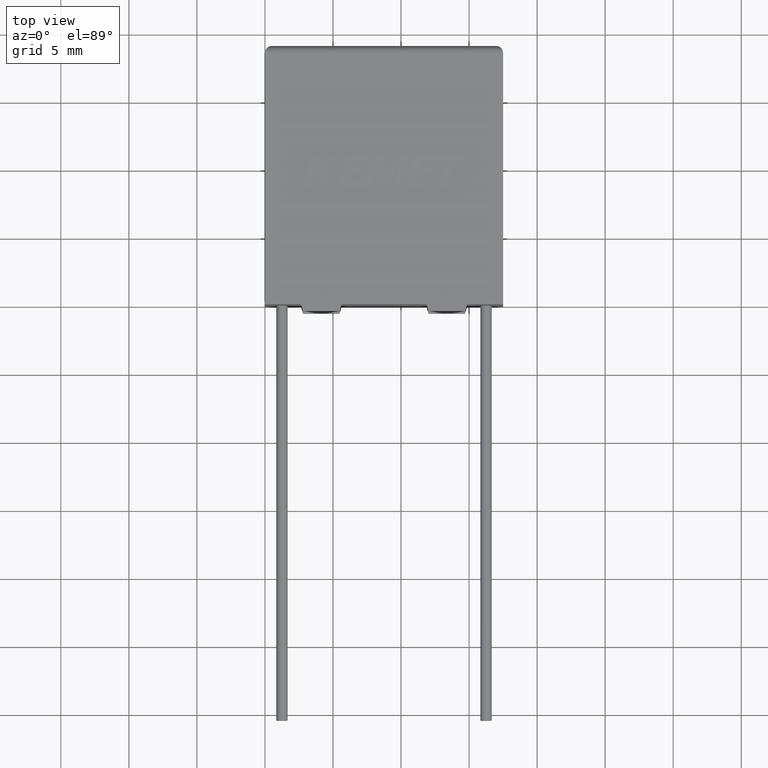
[diagram: clean part render]
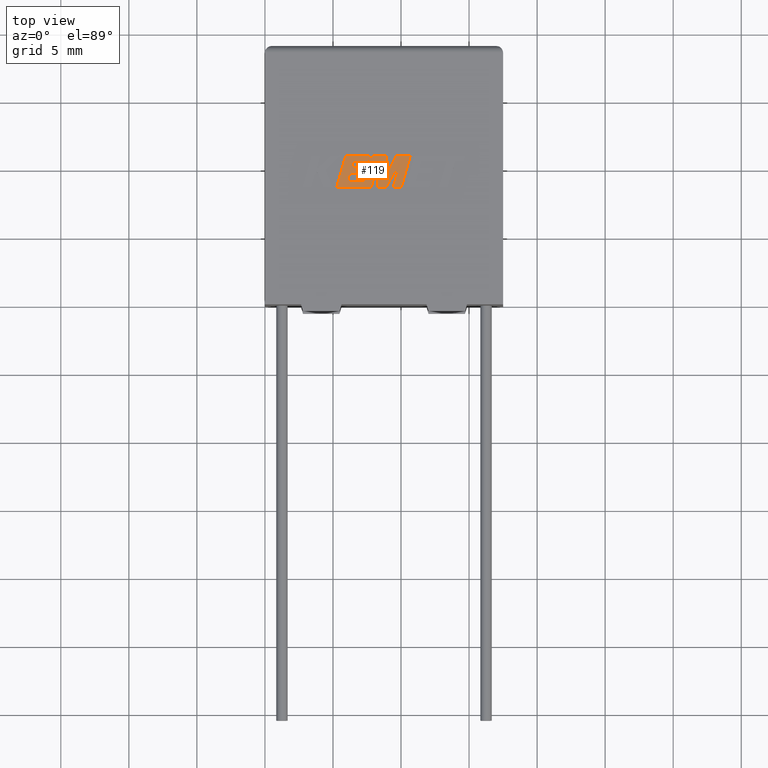
[diagram: same view with one face highlighted and labeled with its STEP entity id]
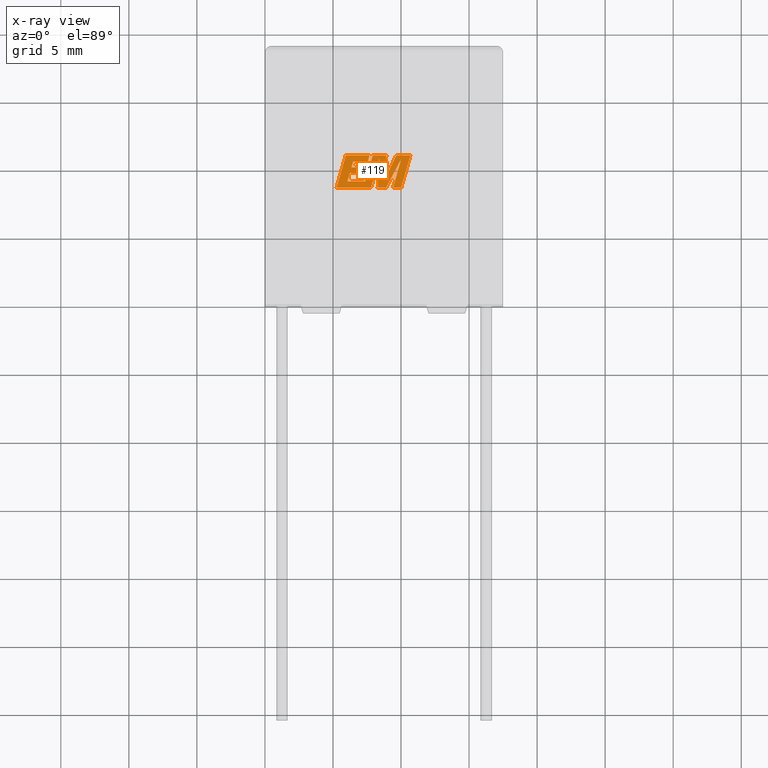
[diagram: x-ray of the same camera — body ghosted, the highlighted face saturated]
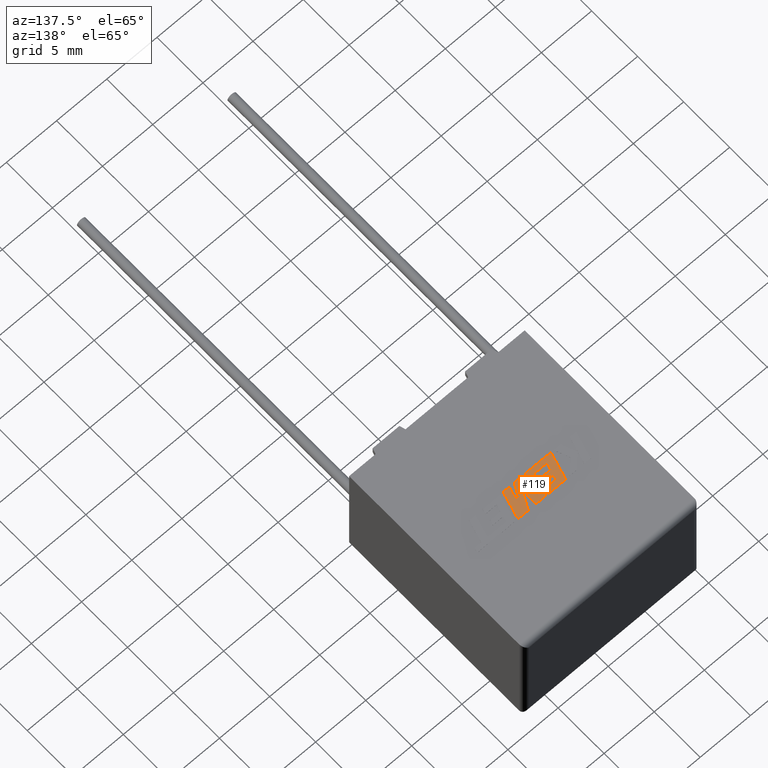
[diagram: same view with one face highlighted and labeled with its STEP entity id]
A machine part, top view. The second image highlights one B-rep face of the part: STEP entity #119.
The next image is the same camera in x-ray: the body ghosted, the highlighted face saturated — about 0% of this face is hidden behind the body in this view.
A second angle (auxiliary view) of the same face is appended — the face is thin or edge-on in the first view.
In plain terms, the highlighted planar face has unit normal (0, 0, -1).
Its self-contained STEP definition (entity closure, byte-faithful):
#35 = CARTESIAN_POINT ( 'NONE',  ( 10.02312357218991500, 10.69786491298199300, 11.50499999999999900 ) ) ;
#48 = LINE ( 'NONE', #1229, #1693 ) ;
#60 = LINE ( 'NONE', #2181, #442 ) ;
#88 = VERTEX_POINT ( 'NONE', #2430 ) ;
#93 = VERTEX_POINT ( 'NONE', #1691 ) ;
#119 = ADVANCED_FACE ( 'NONE', ( #3219 ), #885, .F. ) ;
#133 = ORIENTED_EDGE ( 'NONE', *, *, #2324, .T. ) ;
#151 = DIRECTION ( 'NONE',  ( 0.2740217765954066100, 0.9617234872620595800, 0.0000000000000000000 ) ) ;
#162 = CARTESIAN_POINT ( 'NONE',  ( 7.554755503892309300, 10.49815144438163000, 11.50499999999999900 ) ) ;
#165 = CARTESIAN_POINT ( 'NONE',  ( 7.681918713741795900, 10.94587608440335600, 11.50499999999999900 ) ) ;
#182 = CARTESIAN_POINT ( 'NONE',  ( 0.07943521965645371200, -4.458355050973589000, 11.50499999999999500 ) ) ;
#217 = ORIENTED_EDGE ( 'NONE', *, *, #1422, .T. ) ;
#226 = DIRECTION ( 'NONE',  ( 1.000000000000000000, 0.0000000000000000000, 0.0000000000000000000 ) ) ;
#233 = CARTESIAN_POINT ( 'NONE',  ( 10.01660091485718100, 8.593699999999927300, 11.50499999999999900 ) ) ;
#302 = ORIENTED_EDGE ( 'NONE', *, *, #1940, .T. ) ;
#305 = VERTEX_POINT ( 'NONE', #1101 ) ;
#307 = VECTOR ( 'NONE', #1320, 1000.000000000000000 ) ;
#311 = CARTESIAN_POINT ( 'NONE',  ( 10.02312357218991500, 10.69786491298199300, 11.50499999999999900 ) ) ;
#327 = DIRECTION ( 'NONE',  ( 0.2759782365590801000, 0.9611638845408936300, 0.0000000000000000000 ) ) ;
#342 = LINE ( 'NONE', #233, #1604 ) ;
#343 = LINE ( 'NONE', #2569, #838 ) ;
#354 = CARTESIAN_POINT ( 'NONE',  ( 8.827784731893460800, 9.265451267950634700, 11.50499999999999900 ) ) ;
#369 = ORIENTED_EDGE ( 'NONE', *, *, #1919, .T. ) ;
#407 = ORIENTED_EDGE ( 'NONE', *, *, #1539, .T. ) ;
#413 = CARTESIAN_POINT ( 'NONE',  ( 9.661220449992331500, 10.94587608440335600, 11.50499999999999900 ) ) ;
#438 = VECTOR ( 'NONE', #940, 1000.000000000000000 ) ;
#442 = VECTOR ( 'NONE', #1927, 1000.000000000000200 ) ;
#446 = VECTOR ( 'NONE', #1950, 1000.000000000000000 ) ;
#453 = DIRECTION ( 'NONE',  ( 0.2732148821745925000, 0.9619530280415585800, 0.0000000000000000000 ) ) ;
#459 = EDGE_CURVE ( 'NONE', #1345, #612, #2245, .T. ) ;
#462 = CARTESIAN_POINT ( 'NONE',  ( 6.065143635469668800, 9.041202926892678300, 11.50499999999999900 ) ) ;
#498 = LINE ( 'NONE', #1019, #2895 ) ;
#504 = EDGE_CURVE ( 'NONE', #2608, #2747, #342, .T. ) ;
#573 = ORIENTED_EDGE ( 'NONE', *, *, #2016, .T. ) ;
#594 = ORIENTED_EDGE ( 'NONE', *, *, #1618, .T. ) ;
#595 = CARTESIAN_POINT ( 'NONE',  ( 5.944209849470560400, 10.94587608440335600, 11.50499999999999900 ) ) ;
#612 = VERTEX_POINT ( 'NONE', #462 ) ;
#650 = ORIENTED_EDGE ( 'NONE', *, *, #791, .T. ) ;
#654 = CARTESIAN_POINT ( 'NONE',  ( 10.69286888281140300, 10.94587608440335600, 11.50499999999999900 ) ) ;
#658 = VECTOR ( 'NONE', #151, 1000.000000000000100 ) ;
#790 = CARTESIAN_POINT ( 'NONE',  ( 8.912326471646855100, 8.593699999999927300, 11.50499999999999900 ) ) ;
#791 = EDGE_CURVE ( 'NONE', #1904, #2566, #1078, .T. ) ;
#793 = ORIENTED_EDGE ( 'NONE', *, *, #2169, .T. ) ;
#805 = EDGE_CURVE ( 'NONE', #2494, #1432, #3094, .T. ) ;
#817 = CARTESIAN_POINT ( 'NONE',  ( 7.801364874262980600, 8.593699999999927300, 11.50499999999999900 ) ) ;
#818 = CARTESIAN_POINT ( 'NONE',  ( 7.241153005273329100, 9.625810394430523300, 11.50499999999999900 ) ) ;
#825 = LINE ( 'NONE', #354, #1066 ) ;
#829 = VERTEX_POINT ( 'NONE', #818 ) ;
#834 = VECTOR ( 'NONE', #1792, 1000.000000000000200 ) ;
#838 = VECTOR ( 'NONE', #327, 1000.000000000000100 ) ;
#842 = DIRECTION ( 'NONE',  ( 1.000000000000000000, 0.0000000000000000000, 0.0000000000000000000 ) ) ;
#867 = EDGE_CURVE ( 'NONE', #3045, #1037, #343, .T. ) ;
#879 = CARTESIAN_POINT ( 'NONE',  ( 6.231714566706590300, 9.625810394430523300, 11.50499999999999900 ) ) ;
#885 = PLANE ( 'NONE',  #2885 ) ;
#919 = CARTESIAN_POINT ( 'NONE',  ( 6.483080043273763400, 10.49815144438163000, 11.50499999999999900 ) ) ;
#940 = DIRECTION ( 'NONE',  ( 0.2793947940878287500, 0.9601763114327596100, 0.0000000000000000000 ) ) ;
#951 = VERTEX_POINT ( 'NONE', #2888 ) ;
#1019 = CARTESIAN_POINT ( 'NONE',  ( 8.918242698049985200, 10.94587608440335600, 11.50499999999999900 ) ) ;
#1037 = VERTEX_POINT ( 'NONE', #1357 ) ;
#1052 = ORIENTED_EDGE ( 'NONE', *, *, #3131, .T. ) ;
#1062 = VERTEX_POINT ( 'NONE', #1421 ) ;
#1066 = VECTOR ( 'NONE', #2146, 1000.000000000000100 ) ;
#1071 = LINE ( 'NONE', #2122, #307 ) ;
#1073 = DIRECTION ( 'NONE',  ( -1.000000000000000000, 0.0000000000000000000, 0.0000000000000000000 ) ) ;
#1075 = EDGE_CURVE ( 'NONE', #305, #2608, #2059, .T. ) ;
#1078 = LINE ( 'NONE', #2588, #1776 ) ;
#1101 = CARTESIAN_POINT ( 'NONE',  ( 9.418876612286860400, 8.593699999999927300, 11.50499999999999900 ) ) ;
#1113 = CARTESIAN_POINT ( 'NONE',  ( 6.231714566706590300, 9.625810394430523300, 11.50499999999999900 ) ) ;
#1135 = DIRECTION ( 'NONE',  ( 0.0000000000000000000, 0.0000000000000000000, -1.000000000000000000 ) ) ;
#1229 = CARTESIAN_POINT ( 'NONE',  ( 6.483080043273763400, 10.49815144438163000, 11.50499999999999900 ) ) ;
#1237 = ORIENTED_EDGE ( 'NONE', *, *, #867, .T. ) ;
#1247 = ORIENTED_EDGE ( 'NONE', *, *, #1327, .T. ) ;
#1282 = CARTESIAN_POINT ( 'NONE',  ( 7.369060026916844000, 9.041202926892678300, 11.50499999999999900 ) ) ;
#1285 = DIRECTION ( 'NONE',  ( -1.000000000000000000, 0.0000000000000000000, 0.0000000000000000000 ) ) ;
#1314 = CARTESIAN_POINT ( 'NONE',  ( 8.912326471646855100, 8.593699999999927300, 11.50499999999999900 ) ) ;
#1320 = DIRECTION ( 'NONE',  ( -0.2762517575166160700, -0.9610853065513907900, 0.0000000000000000000 ) ) ;
#1327 = EDGE_CURVE ( 'NONE', #1432, #305, #2657, .T. ) ;
#1331 = EDGE_CURVE ( 'NONE', #88, #93, #498, .T. ) ;
#1345 = VERTEX_POINT ( 'NONE', #3060 ) ;
#1357 = CARTESIAN_POINT ( 'NONE',  ( 8.402636586962369600, 10.68778054145226400, 11.50499999999999900 ) ) ;
#1421 = CARTESIAN_POINT ( 'NONE',  ( 8.285257363114753900, 8.593699999999927300, 11.50499999999999900 ) ) ;
#1422 = EDGE_CURVE ( 'NONE', #93, #1345, #1071, .T. ) ;
#1432 = VERTEX_POINT ( 'NONE', #311 ) ;
#1463 = ORIENTED_EDGE ( 'NONE', *, *, #805, .T. ) ;
#1467 = LINE ( 'NONE', #1749, #2736 ) ;
#1478 = VERTEX_POINT ( 'NONE', #879 ) ;
#1480 = CARTESIAN_POINT ( 'NONE',  ( 7.365355271991178100, 10.06064706458987200, 11.50499999999999900 ) ) ;
#1501 = CARTESIAN_POINT ( 'NONE',  ( 10.69286888281140300, 10.94587608440335600, 11.50499999999999900 ) ) ;
#1539 = EDGE_CURVE ( 'NONE', #1062, #2494, #1588, .T. ) ;
#1574 = DIRECTION ( 'NONE',  ( -0.2765379750249959400, -0.9610029908221278100, 0.0000000000000000000 ) ) ;
#1588 = LINE ( 'NONE', #1674, #446 ) ;
#1595 = VERTEX_POINT ( 'NONE', #2664 ) ;
#1604 = VECTOR ( 'NONE', #3198, 1000.000000000000100 ) ;
#1618 = EDGE_CURVE ( 'NONE', #951, #3240, #1865, .T. ) ;
#1639 = VECTOR ( 'NONE', #2928, 1000.000000000000000 ) ;
#1674 = CARTESIAN_POINT ( 'NONE',  ( 8.285257363114753900, 8.593699999999927300, 11.50499999999999900 ) ) ;
#1675 = ORIENTED_EDGE ( 'NONE', *, *, #1331, .T. ) ;
#1691 = CARTESIAN_POINT ( 'NONE',  ( 7.916534120704699100, 10.94587608440335600, 11.50499999999999900 ) ) ;
#1693 = VECTOR ( 'NONE', #1755, 1000.000000000000000 ) ;
#1708 = DIRECTION ( 'NONE',  ( -0.4443210308329059200, -0.8958676361827030400, 0.0000000000000000000 ) ) ;
#1710 = VECTOR ( 'NONE', #1952, 1000.000000000000100 ) ;
#1732 = CARTESIAN_POINT ( 'NONE',  ( 7.554755503892309300, 10.49815144438163000, 11.50499999999999900 ) ) ;
#1749 = CARTESIAN_POINT ( 'NONE',  ( 5.267348260593836400, 8.593699999999927300, 11.50499999999999900 ) ) ;
#1755 = DIRECTION ( 'NONE',  ( 1.000000000000000000, 0.0000000000000000000, 0.0000000000000000000 ) ) ;
#1760 = DIRECTION ( 'NONE',  ( -1.000000000000000000, 0.0000000000000000000, 0.0000000000000000000 ) ) ;
#1776 = VECTOR ( 'NONE', #1073, 1000.000000000000000 ) ;
#1782 = ORIENTED_EDGE ( 'NONE', *, *, #2532, .T. ) ;
#1792 = DIRECTION ( 'NONE',  ( -0.2760118818968562100, -0.9611542233438689100, 0.0000000000000000000 ) ) ;
#1802 = ORIENTED_EDGE ( 'NONE', *, *, #2109, .T. ) ;
#1813 = LINE ( 'NONE', #3196, #3099 ) ;
#1825 = VECTOR ( 'NONE', #1574, 1000.000000000000000 ) ;
#1837 = EDGE_CURVE ( 'NONE', #2089, #88, #825, .T. ) ;
#1842 = CARTESIAN_POINT ( 'NONE',  ( 5.944209849470560400, 10.94587608440335600, 11.50499999999999900 ) ) ;
#1860 = LINE ( 'NONE', #2947, #438 ) ;
#1865 = LINE ( 'NONE', #1480, #2043 ) ;
#1904 = VERTEX_POINT ( 'NONE', #165 ) ;
#1919 = EDGE_CURVE ( 'NONE', #829, #951, #2340, .T. ) ;
#1927 = DIRECTION ( 'NONE',  ( -0.05596501978068205200, -0.9984327301130245800, 0.0000000000000000000 ) ) ;
#1940 = EDGE_CURVE ( 'NONE', #1037, #1062, #60, .T. ) ;
#1943 = LINE ( 'NONE', #1842, #1825 ) ;
#1950 = DIRECTION ( 'NONE',  ( 1.000000000000000000, 0.0000000000000000000, 0.0000000000000000000 ) ) ;
#1952 = DIRECTION ( 'NONE',  ( 0.2746459304916904500, 0.9615454294334477800, 0.0000000000000000000 ) ) ;
#1977 = CARTESIAN_POINT ( 'NONE',  ( 7.241153005273329100, 9.625810394430523300, 11.50499999999999900 ) ) ;
#1993 = CARTESIAN_POINT ( 'NONE',  ( 8.827784731893460800, 9.265451267950634700, 11.50499999999999900 ) ) ;
#2016 = EDGE_CURVE ( 'NONE', #1595, #3045, #1467, .T. ) ;
#2043 = VECTOR ( 'NONE', #1760, 1000.000000000000000 ) ;
#2059 = LINE ( 'NONE', #2691, #1639 ) ;
#2089 = VERTEX_POINT ( 'NONE', #1993 ) ;
#2109 = EDGE_CURVE ( 'NONE', #3240, #3159, #1860, .T. ) ;
#2115 = ORIENTED_EDGE ( 'NONE', *, *, #2828, .T. ) ;
#2122 = CARTESIAN_POINT ( 'NONE',  ( 7.916534120704699100, 10.94587608440335600, 11.50499999999999900 ) ) ;
#2139 = ORIENTED_EDGE ( 'NONE', *, *, #504, .T. ) ;
#2140 = CARTESIAN_POINT ( 'NONE',  ( 10.01660091485718100, 8.593699999999927300, 11.50499999999999900 ) ) ;
#2146 = DIRECTION ( 'NONE',  ( 0.05375259206908267900, 0.9985542843760947300, 0.0000000000000000000 ) ) ;
#2169 = EDGE_CURVE ( 'NONE', #3247, #1904, #2684, .T. ) ;
#2181 = CARTESIAN_POINT ( 'NONE',  ( 8.402636586962369600, 10.68778054145226400, 11.50499999999999900 ) ) ;
#2196 = CARTESIAN_POINT ( 'NONE',  ( 6.065143635469668800, 9.041202926892678300, 11.50499999999999900 ) ) ;
#2245 = LINE ( 'NONE', #1282, #3214 ) ;
#2259 = LINE ( 'NONE', #1113, #2528 ) ;
#2324 = EDGE_CURVE ( 'NONE', #2747, #3150, #3180, .T. ) ;
#2340 = LINE ( 'NONE', #1977, #1710 ) ;
#2393 = EDGE_CURVE ( 'NONE', #2566, #1595, #1943, .T. ) ;
#2430 = CARTESIAN_POINT ( 'NONE',  ( 8.918242698049985200, 10.94587608440335600, 11.50499999999999900 ) ) ;
#2445 = EDGE_LOOP ( 'NONE', ( #133, #2812, #2957, #1675, #217, #3079, #1052, #1782, #369, #594, #1802, #2115, #793, #650, #3229, #573, #1237, #302, #407, #1463, #1247, #2487, #2139 ) ) ;
#2487 = ORIENTED_EDGE ( 'NONE', *, *, #1075, .T. ) ;
#2494 = VERTEX_POINT ( 'NONE', #790 ) ;
#2528 = VECTOR ( 'NONE', #842, 1000.000000000000000 ) ;
#2532 = EDGE_CURVE ( 'NONE', #1478, #829, #2259, .T. ) ;
#2552 = DIRECTION ( 'NONE',  ( -1.000000000000000000, 0.0000000000000000000, 0.0000000000000000000 ) ) ;
#2566 = VERTEX_POINT ( 'NONE', #595 ) ;
#2569 = CARTESIAN_POINT ( 'NONE',  ( 7.801364874262980600, 8.593699999999927300, 11.50499999999999900 ) ) ;
#2588 = CARTESIAN_POINT ( 'NONE',  ( 7.681918713741795900, 10.94587608440335600, 11.50499999999999900 ) ) ;
#2608 = VERTEX_POINT ( 'NONE', #2140 ) ;
#2657 = LINE ( 'NONE', #35, #834 ) ;
#2664 = CARTESIAN_POINT ( 'NONE',  ( 5.267348260593836400, 8.593699999999927300, 11.50499999999999900 ) ) ;
#2684 = LINE ( 'NONE', #1732, #2956 ) ;
#2691 = CARTESIAN_POINT ( 'NONE',  ( 9.418876612286860400, 8.593699999999927300, 11.50499999999999900 ) ) ;
#2736 = VECTOR ( 'NONE', #226, 1000.000000000000000 ) ;
#2747 = VERTEX_POINT ( 'NONE', #654 ) ;
#2771 = VECTOR ( 'NONE', #3037, 1000.000000000000000 ) ;
#2812 = ORIENTED_EDGE ( 'NONE', *, *, #2880, .T. ) ;
#2828 = EDGE_CURVE ( 'NONE', #3159, #3247, #48, .T. ) ;
#2880 = EDGE_CURVE ( 'NONE', #3150, #2089, #1813, .T. ) ;
#2885 = AXIS2_PLACEMENT_3D ( 'NONE', #182, #1135, #2920 ) ;
#2888 = CARTESIAN_POINT ( 'NONE',  ( 7.365355271991178100, 10.06064706458987200, 11.50499999999999900 ) ) ;
#2895 = VECTOR ( 'NONE', #1285, 1000.000000000000000 ) ;
#2920 = DIRECTION ( 'NONE',  ( -1.000000000000000000, 0.0000000000000000000, 0.0000000000000000000 ) ) ;
#2928 = DIRECTION ( 'NONE',  ( 1.000000000000000000, 0.0000000000000000000, 0.0000000000000000000 ) ) ;
#2947 = CARTESIAN_POINT ( 'NONE',  ( 6.355773792693551800, 10.06064706458987200, 11.50499999999999900 ) ) ;
#2956 = VECTOR ( 'NONE', #453, 1000.000000000000100 ) ;
#2957 = ORIENTED_EDGE ( 'NONE', *, *, #1837, .T. ) ;
#3020 = VECTOR ( 'NONE', #3074, 1000.000000000000200 ) ;
#3037 = DIRECTION ( 'NONE',  ( -1.000000000000000000, 0.0000000000000000000, 0.0000000000000000000 ) ) ;
#3045 = VERTEX_POINT ( 'NONE', #817 ) ;
#3060 = CARTESIAN_POINT ( 'NONE',  ( 7.369060026916844000, 9.041202926892678300, 11.50499999999999900 ) ) ;
#3074 = DIRECTION ( 'NONE',  ( 0.4668459304955211400, 0.8843386665637611400, 0.0000000000000000000 ) ) ;
#3079 = ORIENTED_EDGE ( 'NONE', *, *, #459, .T. ) ;
#3094 = LINE ( 'NONE', #1314, #3020 ) ;
#3099 = VECTOR ( 'NONE', #1708, 1000.000000000000000 ) ;
#3126 = LINE ( 'NONE', #2196, #658 ) ;
#3131 = EDGE_CURVE ( 'NONE', #612, #1478, #3126, .T. ) ;
#3150 = VERTEX_POINT ( 'NONE', #413 ) ;
#3151 = CARTESIAN_POINT ( 'NONE',  ( 6.355773792693551800, 10.06064706458987200, 11.50499999999999900 ) ) ;
#3159 = VERTEX_POINT ( 'NONE', #919 ) ;
#3180 = LINE ( 'NONE', #1501, #2771 ) ;
#3196 = CARTESIAN_POINT ( 'NONE',  ( 9.661220449992331500, 10.94587608440335600, 11.50499999999999900 ) ) ;
#3198 = DIRECTION ( 'NONE',  ( 0.2763139702539115800, 0.9610674221107072800, 0.0000000000000000000 ) ) ;
#3214 = VECTOR ( 'NONE', #2552, 1000.000000000000000 ) ;
#3219 = FACE_OUTER_BOUND ( 'NONE', #2445, .T. ) ;
#3229 = ORIENTED_EDGE ( 'NONE', *, *, #2393, .T. ) ;
#3240 = VERTEX_POINT ( 'NONE', #3151 ) ;
#3247 = VERTEX_POINT ( 'NONE', #162 ) ;